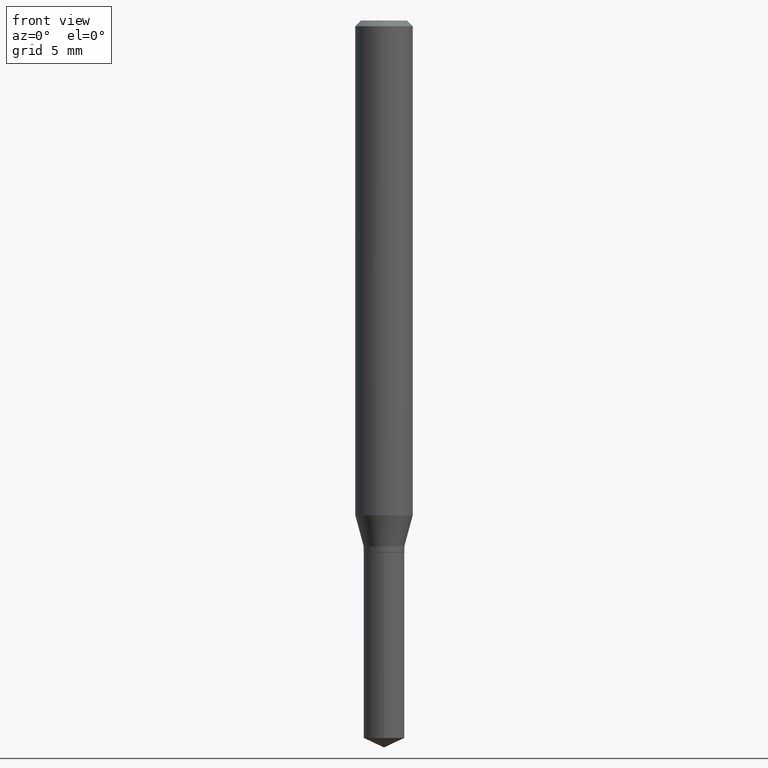
[diagram: clean part render]
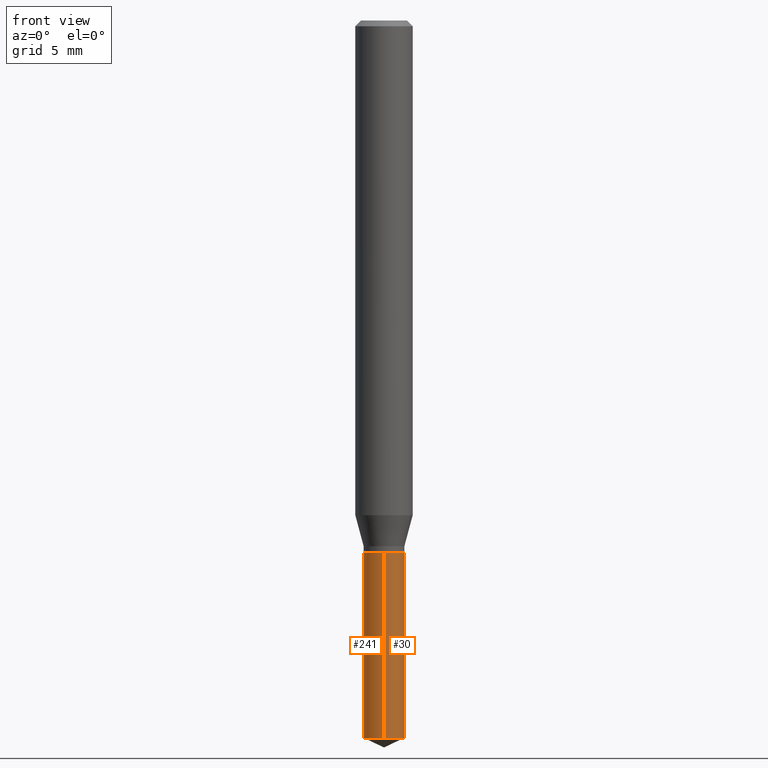
[diagram: same view with one multi-face feature highlighted, each face labeled with its STEP entity id]
A machine part, front view. The highlighted faces form ONE feature: a constant-radius fillet chain: 2 tangent blend faces with common blend radius 1.0655 mm. The faces share edges in the B-rep.
Their STEP definitions:
[1] entity #30 (Cylinder):
#4 = ORIENTED_EDGE ( 'NONE', *, *, #82, .F. ) ;
#10 = CARTESIAN_POINT ( 'NONE',  ( -2.929352843289121272E-16, -0.04195000000000383145, -1.094499999999999806 ) ) ;
#11 = CARTESIAN_POINT ( 'NONE',  ( -2.929352843289027595E-16, -0.04195000000000514984, -1.476538393740397526 ) ) ;
#21 = VERTEX_POINT ( 'NONE', #52 ) ;
#30 = ADVANCED_FACE ( 'NONE', ( #197 ), #56, .T. ) ;
#52 = CARTESIAN_POINT ( 'NONE',  ( -2.929352843289121272E-16, -0.04195000000000383145, -1.094499999999999806 ) ) ;
#56 = CYLINDRICAL_SURFACE ( 'NONE', #237, 0.04195000000000000118 ) ;
#58 = VERTEX_POINT ( 'NONE', #163 ) ;
#61 = DIRECTION ( 'NONE',  ( -6.982962677686266711E-15, -1.000000000000000000, 3.256076273735712870E-15 ) ) ;
#82 = EDGE_CURVE ( 'NONE', #468, #21, #245, .T. ) ;
#92 = DIRECTION ( 'NONE',  ( -2.445458899330790108E-29, 3.491495526022433205E-15, 1.000000000000000000 ) ) ;
#104 = DIRECTION ( 'NONE',  ( -2.445458899330790108E-29, 3.491495526022433205E-15, 1.000000000000000000 ) ) ;
#108 = AXIS2_PLACEMENT_3D ( 'NONE', #294, #104, #112 ) ;
#112 = DIRECTION ( 'NONE',  ( -6.982962677686266711E-15, -1.000000000000000000, 6.512152547471425740E-15 ) ) ;
#114 = CIRCLE ( 'NONE', #108, 0.04195000000000000118 ) ;
#137 = VECTOR ( 'NONE', #263, 39.37007874015748143 ) ;
#141 = LINE ( 'NONE', #265, #137 ) ;
#143 = AXIS2_PLACEMENT_3D ( 'NONE', #430, #92, #61 ) ;
#163 = CARTESIAN_POINT ( 'NONE',  ( 2.980726776513980774E-16, 0.04194999999999617091, -1.094500000000000028 ) ) ;
#166 = EDGE_LOOP ( 'NONE', ( #389, #189, #315, #4 ) ) ;
#189 = ORIENTED_EDGE ( 'NONE', *, *, #404, .T. ) ;
#194 = DIRECTION ( 'NONE',  ( -2.445458899330790108E-29, 3.491495526022433599E-15, 1.000000000000000000 ) ) ;
#197 = FACE_OUTER_BOUND ( 'NONE', #166, .T. ) ;
#230 = EDGE_CURVE ( 'NONE', #21, #58, #365, .T. ) ;
#237 = AXIS2_PLACEMENT_3D ( 'NONE', #306, #358, #466 ) ;
#245 = LINE ( 'NONE', #10, #277 ) ;
#263 = DIRECTION ( 'NONE',  ( -2.445458899330790108E-29, 3.491495526022433599E-15, 1.000000000000000000 ) ) ;
#265 = CARTESIAN_POINT ( 'NONE',  ( 2.980726776513887590E-16, 0.04194999999999617785, -1.094500000000000028 ) ) ;
#277 = VECTOR ( 'NONE', #194, 39.37007874015748143 ) ;
#294 = CARTESIAN_POINT ( 'NONE',  ( 3.610824798228128264E-29, -5.155311667877218930E-15, -1.476538393740397970 ) ) ;
#296 = EDGE_CURVE ( 'NONE', #468, #436, #114, .T. ) ;
#306 = CARTESIAN_POINT ( 'NONE',  ( 2.676565608369631794E-29, -3.821426325363822773E-15, -1.094499999999999806 ) ) ;
#315 = ORIENTED_EDGE ( 'NONE', *, *, #230, .F. ) ;
#358 = DIRECTION ( 'NONE',  ( -2.445458899330790108E-29, 3.491495526022433205E-15, 1.000000000000000000 ) ) ;
#365 = CIRCLE ( 'NONE', #143, 0.04195000000000000118 ) ;
#389 = ORIENTED_EDGE ( 'NONE', *, *, #296, .T. ) ;
#404 = EDGE_CURVE ( 'NONE', #436, #58, #141, .T. ) ;
#430 = CARTESIAN_POINT ( 'NONE',  ( 2.676565608369631794E-29, -3.821426325363822773E-15, -1.094499999999999806 ) ) ;
#436 = VERTEX_POINT ( 'NONE', #448 ) ;
#448 = CARTESIAN_POINT ( 'NONE',  ( 2.980726776513980281E-16, 0.04194999999999483864, -1.476538393740398192 ) ) ;
#466 = DIRECTION ( 'NONE',  ( -6.982962677686266711E-15, -1.000000000000000000, 3.256076273735712870E-15 ) ) ;
#468 = VERTEX_POINT ( 'NONE', #11 ) ;
[2] entity #241 (Cylinder):
#10 = CARTESIAN_POINT ( 'NONE',  ( -2.929352843289121272E-16, -0.04195000000000383145, -1.094499999999999806 ) ) ;
#11 = CARTESIAN_POINT ( 'NONE',  ( -2.929352843289027595E-16, -0.04195000000000514984, -1.476538393740397526 ) ) ;
#21 = VERTEX_POINT ( 'NONE', #52 ) ;
#24 = CIRCLE ( 'NONE', #226, 0.04195000000000000118 ) ;
#34 = DIRECTION ( 'NONE',  ( -6.982962677686266711E-15, -1.000000000000000000, 3.256076273735712870E-15 ) ) ;
#48 = CIRCLE ( 'NONE', #175, 0.04195000000000000118 ) ;
#52 = CARTESIAN_POINT ( 'NONE',  ( -2.929352843289121272E-16, -0.04195000000000383145, -1.094499999999999806 ) ) ;
#57 = EDGE_CURVE ( 'NONE', #436, #468, #48, .T. ) ;
#58 = VERTEX_POINT ( 'NONE', #163 ) ;
#77 = ORIENTED_EDGE ( 'NONE', *, *, #276, .F. ) ;
#82 = EDGE_CURVE ( 'NONE', #468, #21, #245, .T. ) ;
#89 = ORIENTED_EDGE ( 'NONE', *, *, #82, .T. ) ;
#137 = VECTOR ( 'NONE', #263, 39.37007874015748143 ) ;
#141 = LINE ( 'NONE', #265, #137 ) ;
#160 = ORIENTED_EDGE ( 'NONE', *, *, #404, .F. ) ;
#163 = CARTESIAN_POINT ( 'NONE',  ( 2.980726776513980774E-16, 0.04194999999999617091, -1.094500000000000028 ) ) ;
#173 = DIRECTION ( 'NONE',  ( -2.445458899330790108E-29, 3.491495526022433205E-15, 1.000000000000000000 ) ) ;
#175 = AXIS2_PLACEMENT_3D ( 'NONE', #390, #343, #463 ) ;
#194 = DIRECTION ( 'NONE',  ( -2.445458899330790108E-29, 3.491495526022433599E-15, 1.000000000000000000 ) ) ;
#207 = CYLINDRICAL_SURFACE ( 'NONE', #227, 0.04195000000000000118 ) ;
#226 = AXIS2_PLACEMENT_3D ( 'NONE', #370, #374, #34 ) ;
#227 = AXIS2_PLACEMENT_3D ( 'NONE', #362, #173, #322 ) ;
#241 = ADVANCED_FACE ( 'NONE', ( #396 ), #207, .T. ) ;
#245 = LINE ( 'NONE', #10, #277 ) ;
#263 = DIRECTION ( 'NONE',  ( -2.445458899330790108E-29, 3.491495526022433599E-15, 1.000000000000000000 ) ) ;
#265 = CARTESIAN_POINT ( 'NONE',  ( 2.980726776513887590E-16, 0.04194999999999617785, -1.094500000000000028 ) ) ;
#276 = EDGE_CURVE ( 'NONE', #58, #21, #24, .T. ) ;
#277 = VECTOR ( 'NONE', #194, 39.37007874015748143 ) ;
#308 = ORIENTED_EDGE ( 'NONE', *, *, #57, .T. ) ;
#322 = DIRECTION ( 'NONE',  ( -6.982962677686266711E-15, -1.000000000000000000, 3.256076273735712870E-15 ) ) ;
#343 = DIRECTION ( 'NONE',  ( -2.445458899330790108E-29, 3.491495526022433205E-15, 1.000000000000000000 ) ) ;
#362 = CARTESIAN_POINT ( 'NONE',  ( 2.676565608369631794E-29, -3.821426325363822773E-15, -1.094499999999999806 ) ) ;
#370 = CARTESIAN_POINT ( 'NONE',  ( 2.676565608369631794E-29, -3.821426325363822773E-15, -1.094499999999999806 ) ) ;
#374 = DIRECTION ( 'NONE',  ( -2.445458899330790108E-29, 3.491495526022433205E-15, 1.000000000000000000 ) ) ;
#390 = CARTESIAN_POINT ( 'NONE',  ( 3.610824798228128264E-29, -5.155311667877218930E-15, -1.476538393740397970 ) ) ;
#396 = FACE_OUTER_BOUND ( 'NONE', #454, .T. ) ;
#404 = EDGE_CURVE ( 'NONE', #436, #58, #141, .T. ) ;
#436 = VERTEX_POINT ( 'NONE', #448 ) ;
#448 = CARTESIAN_POINT ( 'NONE',  ( 2.980726776513980281E-16, 0.04194999999999483864, -1.476538393740398192 ) ) ;
#454 = EDGE_LOOP ( 'NONE', ( #160, #308, #89, #77 ) ) ;
#463 = DIRECTION ( 'NONE',  ( -6.982962677686266711E-15, -1.000000000000000000, 6.512152547471425740E-15 ) ) ;
#468 = VERTEX_POINT ( 'NONE', #11 ) ;